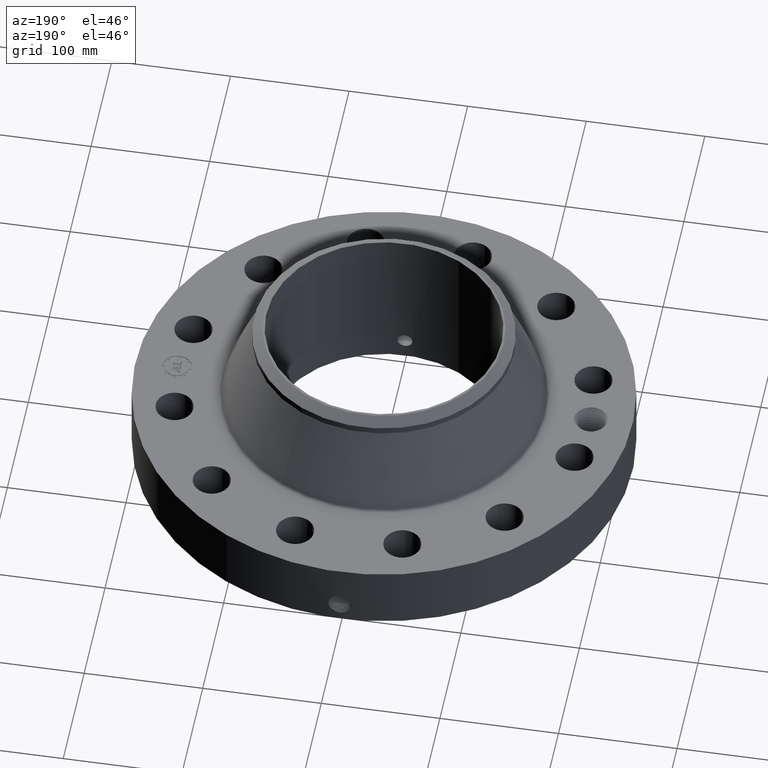
[diagram: clean part render]
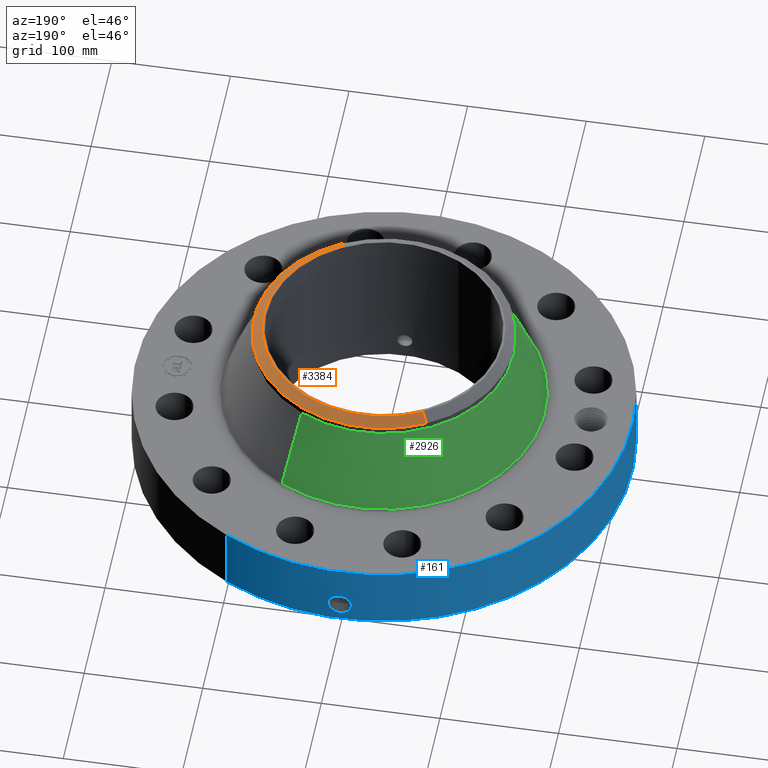
[diagram: same view with three faces highlighted in distinct colors, each labeled with its STEP entity id]
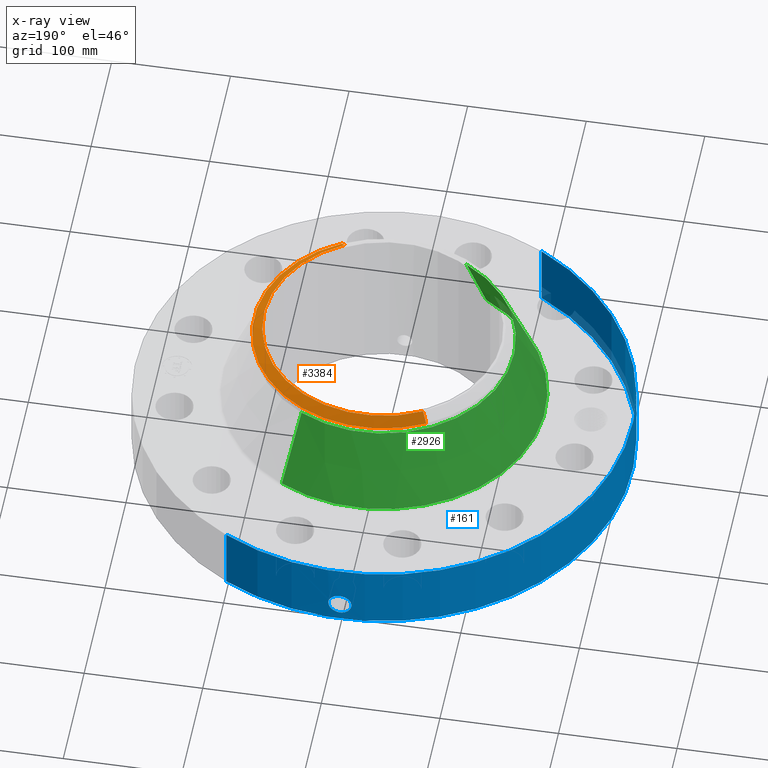
[diagram: x-ray of the same camera — body ghosted, the three highlighted faces saturated]
A machine part, auxiliary view with three faces highlighted in distinct colors.
The next image is the same camera in x-ray (body ghosted, the three faces saturated) — at least one of them is partly hidden behind the body in this view.
Their STEP definitions:

[orange] entity #3384 — the highlighted conical surface has half-angle 52.5 deg.
#2520=AXIS2_PLACEMENT_3D('Circle Axis2P3D',#2518,#2519,$) ;
#3329=AXIS2_PLACEMENT_3D('Cone Axis2P3D',#3326,#3327,#3328) ;
#3367=AXIS2_PLACEMENT_3D('Circle Axis2P3D',#3365,#3366,$) ;
#3374=AXIS2_PLACEMENT_3D('Circle Axis2P3D',#3372,#3373,$) ;
#2518=CARTESIAN_POINT('Axis2P3D Location',(0.,0.,5.50000000002)) ;
#2522=CARTESIAN_POINT('Vertex',(1.91062590897,-3.49737726716,5.50000000002)) ;
#2524=CARTESIAN_POINT('Vertex',(-1.91062590897,3.49737726716,5.50000000002)) ;
#3326=CARTESIAN_POINT('Axis2P3D Location',(0.,0.,5.50000000002)) ;
#3331=CARTESIAN_POINT('Line Origine',(1.98967355403,-3.64207301087,5.37348318666)) ;
#3335=CARTESIAN_POINT('Vertex',(2.06872119909,-3.78676875457,5.2469663733)) ;
#3338=CARTESIAN_POINT('Line Origine',(-1.98967355403,3.64207301087,5.37348318666)) ;
#3342=CARTESIAN_POINT('Vertex',(-2.06872119909,3.78676875457,5.2469663733)) ;
#3365=CARTESIAN_POINT('Axis2P3D Location',(0.,0.,5.2469663733)) ;
#3369=CARTESIAN_POINT('Vertex',(2.06872119909,3.78676875457,5.2469663733)) ;
#3372=CARTESIAN_POINT('Axis2P3D Location',(0.,0.,5.2469663733)) ;
#2519=DIRECTION('Axis2P3D Direction',(0.,0.,-0.0393700787402)) ;
#3327=DIRECTION('Axis2P3D Direction',(-0.,-0.,-0.0393700787402)) ;
#3328=DIRECTION('Axis2P3D XDirection',(-0.0188750212049,0.0345504945626,0.)) ;
#3332=DIRECTION('Vector Direction',(0.014974561121,-0.02741075027,-0.023966985394)) ;
#3339=DIRECTION('Vector Direction',(-0.014974561121,0.02741075027,-0.023966985394)) ;
#3366=DIRECTION('Axis2P3D Direction',(0.,0.,-0.0393700787402)) ;
#3373=DIRECTION('Axis2P3D Direction',(0.,0.,-0.0393700787402)) ;
#3333=VECTOR('Line Direction',#3332,0.0393700787402) ;
#3340=VECTOR('Line Direction',#3339,0.0393700787402) ;
#3378=ORIENTED_EDGE('',*,*,#3344,.F.) ;
#3379=ORIENTED_EDGE('',*,*,#2526,.F.) ;
#3380=ORIENTED_EDGE('',*,*,#3337,.T.) ;
#3381=ORIENTED_EDGE('',*,*,#3371,.T.) ;
#3382=ORIENTED_EDGE('',*,*,#3376,.F.) ;
#3384=ADVANCED_FACE('PartBody',(#3383),#3330,.T.) ;
#2521=CIRCLE('generated circle',#2520,3.9852401575) ;
#3368=CIRCLE('generated circle',#3367,4.31500000002) ;
#3375=CIRCLE('generated circle',#3374,4.31500000002) ;
#3330=CONICAL_SURFACE('Cone',#3329,3.9852401575,0.916297857297) ;
#2526=EDGE_CURVE('',#2523,#2525,#2521,.F.) ;
#3337=EDGE_CURVE('',#2523,#3336,#3334,.T.) ;
#3344=EDGE_CURVE('',#2525,#3343,#3341,.T.) ;
#3371=EDGE_CURVE('',#3336,#3370,#3368,.F.) ;
#3376=EDGE_CURVE('',#3343,#3370,#3375,.T.) ;
#3377=EDGE_LOOP('',(#3378,#3379,#3380,#3381,#3382)) ;
#3383=FACE_OUTER_BOUND('',#3377,.T.) ;
#3334=LINE('Line',#3331,#3333) ;
#3341=LINE('Line',#3338,#3340) ;
#2523=VERTEX_POINT('',#2522) ;
#2525=VERTEX_POINT('',#2524) ;
#3336=VERTEX_POINT('',#3335) ;
#3343=VERTEX_POINT('',#3342) ;
#3370=VERTEX_POINT('',#3369) ;

[blue] entity #161 — the highlighted cylindrical surface (partial cylindrical patch) has radius 209.55 mm, axis along (0, 0, -1).
#38=AXIS2_PLACEMENT_3D('Cylinder Axis2P3D',#35,#36,#37) ;
#42=AXIS2_PLACEMENT_3D('Circle Axis2P3D',#40,#41,$) ;
#58=AXIS2_PLACEMENT_3D('Circle Axis2P3D',#56,#57,$) ;
#35=CARTESIAN_POINT('Axis2P3D Location',(0.,0.,2.87500000001)) ;
#40=CARTESIAN_POINT('Axis2P3D Location',(0.,0.,0.250000000001)) ;
#44=CARTESIAN_POINT('Vertex',(-3.9552606935,-7.24005613562,0.250000000001)) ;
#46=CARTESIAN_POINT('Vertex',(3.9552606935,7.24005613562,0.250000000001)) ;
#49=CARTESIAN_POINT('Line Origine',(-3.9552606935,-7.24005613562,1.34500000001)) ;
#53=CARTESIAN_POINT('Vertex',(-3.9552606935,-7.24005613562,2.44000000001)) ;
#56=CARTESIAN_POINT('Axis2P3D Location',(0.,0.,2.44000000001)) ;
#60=CARTESIAN_POINT('Vertex',(3.9552606935,7.24005613562,2.44000000001)) ;
#63=CARTESIAN_POINT('Line Origine',(3.9552606935,7.24005613562,1.34500000001)) ;
#75=CARTESIAN_POINT('Control Point',(-0.0585696128887,8.24979209441,1.28923521611)) ;
#76=CARTESIAN_POINT('Control Point',(-0.0394626526908,8.24992774477,1.29244398859)) ;
#77=CARTESIAN_POINT('Control Point',(-0.0200911592014,8.24999828679,1.29407922484)) ;
#78=CARTESIAN_POINT('Control Point',(-0.000716274477469,8.24999996894,1.29411849877)) ;
#79=CARTESIAN_POINT('Vertex',(-0.0585551594517,8.24979245592,1.28923793039)) ;
#81=CARTESIAN_POINT('Vertex',(-0.000716142933371,8.24999996895,1.29411850921)) ;
#85=CARTESIAN_POINT('Control Point',(-0.0585550548739,8.24979219775,1.28923735404)) ;
#86=CARTESIAN_POINT('Control Point',(-0.097777861045,8.24951380364,1.28434299913)) ;
#87=CARTESIAN_POINT('Control Point',(-0.136232915895,8.24895065119,1.27230088991)) ;
#88=CARTESIAN_POINT('Control Point',(-0.171527588296,8.24821667314,1.25401074387)) ;
#89=CARTESIAN_POINT('Vertex',(-0.171527588296,8.24821667314,1.25401074387)) ;
#93=CARTESIAN_POINT('Control Point',(-0.0301661831778,8.24994484842,0.531126499402)) ;
#94=CARTESIAN_POINT('Control Point',(-0.0863158725847,8.24973953531,0.538271730941)) ;
#95=CARTESIAN_POINT('Control Point',(-0.140867393011,8.24906236128,0.555888081698)) ;
#96=CARTESIAN_POINT('Control Point',(-0.191063330736,8.24797606519,0.583459203779)) ;
#97=CARTESIAN_POINT('Control Point',(-0.264021348286,8.24590958046,0.64287450905)) ;
#98=CARTESIAN_POINT('Control Point',(-0.31583381647,8.2439862277,0.719126076859)) ;
#99=CARTESIAN_POINT('Control Point',(-0.332862825096,8.24329962511,0.751799202826)) ;
#100=CARTESIAN_POINT('Control Point',(-0.36822283732,8.24181030792,0.843994368665)) ;
#101=CARTESIAN_POINT('Control Point',(-0.374342967402,8.24148913876,0.94264315349)) ;
#102=CARTESIAN_POINT('Control Point',(-0.366209339837,8.24188145625,1.00431541996)) ;
#103=CARTESIAN_POINT('Control Point',(-0.333004984504,8.243387758,1.10218934393)) ;
#104=CARTESIAN_POINT('Control Point',(-0.270471268296,8.2456283249,1.1826225691)) ;
#105=CARTESIAN_POINT('Control Point',(-0.240874299621,8.24657783052,1.21132241956)) ;
#106=CARTESIAN_POINT('Control Point',(-0.20754928629,8.24746757606,1.23534384304)) ;
#107=CARTESIAN_POINT('Control Point',(-0.171527588296,8.24821667314,1.25401074387)) ;
#108=CARTESIAN_POINT('Vertex',(-0.0301661831778,8.24994484842,0.531126499402)) ;
#112=CARTESIAN_POINT('Control Point',(-0.0301661831778,8.24994484842,0.531126499402)) ;
#113=CARTESIAN_POINT('Control Point',(-0.0201048323032,8.24998163806,0.530865651291)) ;
#114=CARTESIAN_POINT('Control Point',(-0.010038769677,8.25000000335,0.530948524294)) ;
#115=CARTESIAN_POINT('Control Point',(2.7287835436E-006,8.25000000003,0.531374667805)) ;
#116=CARTESIAN_POINT('Vertex',(2.72878353785E-006,8.25000000003,0.531374667805)) ;
#120=CARTESIAN_POINT('Control Point',(0.193376636571,8.2477333539,0.586036260197)) ;
#121=CARTESIAN_POINT('Control Point',(0.149296475206,8.24876685886,0.561236554268)) ;
#122=CARTESIAN_POINT('Control Point',(0.101176964588,8.24958173649,0.543501446442)) ;
#123=CARTESIAN_POINT('Control Point',(0.0508280469548,8.24999998322,0.533531605389)) ;
#124=CARTESIAN_POINT('Control Point',(2.72878355826E-006,8.25000000003,0.531374667805)) ;
#125=CARTESIAN_POINT('Vertex',(0.193376636571,8.2477333539,0.586036260197)) ;
#129=CARTESIAN_POINT('Control Point',(0.193376636571,8.2477333539,0.586036260197)) ;
#130=CARTESIAN_POINT('Control Point',(0.222475245699,8.24705110692,0.602407273563)) ;
#131=CARTESIAN_POINT('Control Point',(0.249928246394,8.24627904485,0.621663590948)) ;
#132=CARTESIAN_POINT('Control Point',(0.275330507809,8.24545549083,0.643640136217)) ;
#133=CARTESIAN_POINT('Control Point',(0.342403540039,8.24304477495,0.71512277359)) ;
#134=CARTESIAN_POINT('Control Point',(0.385376472358,8.24103926985,0.80469580448)) ;
#135=CARTESIAN_POINT('Control Point',(0.400616608872,8.24025160308,0.869012310412)) ;
#136=CARTESIAN_POINT('Control Point',(0.401714064035,8.2402431258,0.98326120027)) ;
#137=CARTESIAN_POINT('Control Point',(0.361790909711,8.24209270966,1.08796883094)) ;
#138=CARTESIAN_POINT('Control Point',(0.337601239461,8.24316154871,1.12942392742)) ;
#139=CARTESIAN_POINT('Control Point',(0.268614235695,8.24586286825,1.21362504746)) ;
#140=CARTESIAN_POINT('Control Point',(0.175473094958,8.24840438088,1.26855126017)) ;
#141=CARTESIAN_POINT('Control Point',(0.118010541651,8.24948032514,1.28854420531)) ;
#142=CARTESIAN_POINT('Control Point',(0.0585599402406,8.25000018362,1.29702524082)) ;
#143=CARTESIAN_POINT('Control Point',(-2.58579355231E-005,8.24999999999,1.29415298433)) ;
#144=CARTESIAN_POINT('Vertex',(-2.58579355339E-005,8.24999999999,1.29415298433)) ;
#148=CARTESIAN_POINT('Control Point',(-0.000716142923083,8.24999996895,1.29411850919)) ;
#149=CARTESIAN_POINT('Control Point',(-0.000371024410716,8.24999999891,1.29413606204)) ;
#150=CARTESIAN_POINT('Control Point',(-2.58579414909E-005,8.24999999999,1.29415298433)) ;
#36=DIRECTION('Axis2P3D Direction',(0.,0.,-0.0393700787402)) ;
#37=DIRECTION('Axis2P3D XDirection',(0.0188750212049,0.0345504945626,0.)) ;
#41=DIRECTION('Axis2P3D Direction',(0.,0.,-0.0393700787402)) ;
#50=DIRECTION('Vector Direction',(0.,0.,-0.0393700787402)) ;
#57=DIRECTION('Axis2P3D Direction',(0.,0.,-0.0393700787402)) ;
#64=DIRECTION('Vector Direction',(0.,0.,-0.0393700787402)) ;
#51=VECTOR('Line Direction',#50,0.0393700787402) ;
#65=VECTOR('Line Direction',#64,0.0393700787402) ;
#69=ORIENTED_EDGE('',*,*,#48,.F.) ;
#70=ORIENTED_EDGE('',*,*,#55,.T.) ;
#71=ORIENTED_EDGE('',*,*,#62,.T.) ;
#72=ORIENTED_EDGE('',*,*,#67,.F.) ;
#153=ORIENTED_EDGE('',*,*,#83,.F.) ;
#154=ORIENTED_EDGE('',*,*,#91,.T.) ;
#155=ORIENTED_EDGE('',*,*,#110,.F.) ;
#156=ORIENTED_EDGE('',*,*,#118,.T.) ;
#157=ORIENTED_EDGE('',*,*,#127,.F.) ;
#158=ORIENTED_EDGE('',*,*,#146,.T.) ;
#159=ORIENTED_EDGE('',*,*,#151,.F.) ;
#160=FACE_BOUND('',#152,.T.) ;
#161=ADVANCED_FACE('PartBody',(#73,#160),#39,.T.) ;
#74=B_SPLINE_CURVE_WITH_KNOTS('',3,(#75,#76,#77,#78),.UNSPECIFIED.,.F.,.U.,(4,4),(4.37192351915,6.52139132832),.UNSPECIFIED.) ;
#84=B_SPLINE_CURVE_WITH_KNOTS('',3,(#85,#86,#87,#88),.UNSPECIFIED.,.F.,.U.,(4,4),(0.,4.44126858864),.UNSPECIFIED.) ;
#92=B_SPLINE_CURVE_WITH_KNOTS('',5,(#93,#94,#95,#96,#97,#98,#99,#100,#101,#102,#103,#104,#105,#106,#107),.UNSPECIFIED.,.F.,.U.,(6,3,3,3,6),(0.,9.83723212412,16.4175924902,27.5981636564,35.152752242),.UNSPECIFIED.) ;
#111=B_SPLINE_CURVE_WITH_KNOTS('',3,(#112,#113,#114,#115),.UNSPECIFIED.,.F.,.U.,(4,4),(0.,1.049454021),.UNSPECIFIED.) ;
#119=B_SPLINE_CURVE_WITH_KNOTS('',4,(#120,#121,#122,#123,#124),.UNSPECIFIED.,.F.,.U.,(5,5),(0.,7.08245351645),.UNSPECIFIED.) ;
#128=B_SPLINE_CURVE_WITH_KNOTS('',5,(#129,#130,#131,#132,#133,#134,#135,#136,#137,#138,#139,#140,#141,#142,#143),.UNSPECIFIED.,.F.,.U.,(6,3,3,3,6),(0.,5.84416939232,17.0877563965,25.53593101,36.4868313987),.UNSPECIFIED.) ;
#147=B_SPLINE_CURVE_WITH_KNOTS('',2,(#148,#149,#150),.UNSPECIFIED.,.F.,.U.,(3,3),(1.0499922076,1.07579971677),.UNSPECIFIED.) ;
#43=CIRCLE('generated circle',#42,8.25000000003) ;
#59=CIRCLE('generated circle',#58,8.25000000003) ;
#39=CYLINDRICAL_SURFACE('generated cylinder',#38,8.25000000003) ;
#48=EDGE_CURVE('',#45,#47,#43,.T.) ;
#55=EDGE_CURVE('',#45,#54,#52,.F.) ;
#62=EDGE_CURVE('',#54,#61,#59,.T.) ;
#67=EDGE_CURVE('',#47,#61,#66,.F.) ;
#83=EDGE_CURVE('',#80,#82,#74,.T.) ;
#91=EDGE_CURVE('',#80,#90,#84,.T.) ;
#110=EDGE_CURVE('',#109,#90,#92,.T.) ;
#118=EDGE_CURVE('',#109,#117,#111,.T.) ;
#127=EDGE_CURVE('',#126,#117,#119,.T.) ;
#146=EDGE_CURVE('',#126,#145,#128,.T.) ;
#151=EDGE_CURVE('',#82,#145,#147,.T.) ;
#68=EDGE_LOOP('',(#69,#70,#71,#72)) ;
#152=EDGE_LOOP('',(#153,#154,#155,#156,#157,#158,#159)) ;
#73=FACE_OUTER_BOUND('',#68,.T.) ;
#52=LINE('Line',#49,#51) ;
#66=LINE('Line',#63,#65) ;
#45=VERTEX_POINT('',#44) ;
#47=VERTEX_POINT('',#46) ;
#54=VERTEX_POINT('',#53) ;
#61=VERTEX_POINT('',#60) ;
#80=VERTEX_POINT('',#79) ;
#82=VERTEX_POINT('',#81) ;
#90=VERTEX_POINT('',#89) ;
#109=VERTEX_POINT('',#108) ;
#117=VERTEX_POINT('',#116) ;
#126=VERTEX_POINT('',#125) ;
#145=VERTEX_POINT('',#144) ;

[green] entity #2926 — the highlighted conical surface has half-angle 22.408 deg.
#2172=AXIS2_PLACEMENT_3D('Circle Axis2P3D',#2170,#2171,$) ;
#2887=AXIS2_PLACEMENT_3D('Cone Axis2P3D',#2884,#2885,#2886) ;
#2917=AXIS2_PLACEMENT_3D('Circle Axis2P3D',#2915,#2916,$) ;
#2148=CARTESIAN_POINT('Vertex',(2.56223312122,4.69013626856,2.51425624679)) ;
#2155=CARTESIAN_POINT('Vertex',(-2.56223312122,-4.69013626856,2.51425624679)) ;
#2170=CARTESIAN_POINT('Axis2P3D Location',(0.,0.,2.51425624679)) ;
#2884=CARTESIAN_POINT('Axis2P3D Location',(0.,0.,5.01074590086)) ;
#2889=CARTESIAN_POINT('Line Origine',(2.31547716015,4.23845251156,3.76250107383)) ;
#2893=CARTESIAN_POINT('Vertex',(2.06872119909,3.78676875457,5.01074590086)) ;
#2900=CARTESIAN_POINT('Vertex',(-2.06872119909,-3.78676875457,5.01074590086)) ;
#2903=CARTESIAN_POINT('Line Origine',(-2.31547716015,-4.23845251156,3.76250107383)) ;
#2915=CARTESIAN_POINT('Axis2P3D Location',(0.,0.,5.01074590086)) ;
#2171=DIRECTION('Axis2P3D Direction',(0.,0.,-0.0393700787402)) ;
#2885=DIRECTION('Axis2P3D Direction',(0.,0.,-0.0393700787402)) ;
#2886=DIRECTION('Axis2P3D XDirection',(-0.0188750212049,-0.0345504945626,0.)) ;
#2890=DIRECTION('Vector Direction',(0.00719511926622,0.0131705774731,-0.0363973796828)) ;
#2904=DIRECTION('Vector Direction',(-0.00719511926622,-0.0131705774731,-0.0363973796828)) ;
#2916=DIRECTION('Axis2P3D Direction',(0.,0.,-0.0393700787402)) ;
#2891=VECTOR('Line Direction',#2890,0.0393700787402) ;
#2905=VECTOR('Line Direction',#2904,0.0393700787402) ;
#2921=ORIENTED_EDGE('',*,*,#2174,.F.) ;
#2922=ORIENTED_EDGE('',*,*,#2907,.T.) ;
#2923=ORIENTED_EDGE('',*,*,#2919,.T.) ;
#2924=ORIENTED_EDGE('',*,*,#2895,.F.) ;
#2926=ADVANCED_FACE('PartBody',(#2925),#2888,.T.) ;
#2173=CIRCLE('generated circle',#2172,5.34438179635) ;
#2918=CIRCLE('generated circle',#2917,4.31500000002) ;
#2888=CONICAL_SURFACE('Cone',#2887,4.31500000002,0.391091734485) ;
#2174=EDGE_CURVE('',#2156,#2149,#2173,.T.) ;
#2895=EDGE_CURVE('',#2149,#2894,#2892,.F.) ;
#2907=EDGE_CURVE('',#2156,#2901,#2906,.F.) ;
#2919=EDGE_CURVE('',#2901,#2894,#2918,.T.) ;
#2920=EDGE_LOOP('',(#2921,#2922,#2923,#2924)) ;
#2925=FACE_OUTER_BOUND('',#2920,.T.) ;
#2892=LINE('Line',#2889,#2891) ;
#2906=LINE('Line',#2903,#2905) ;
#2149=VERTEX_POINT('',#2148) ;
#2156=VERTEX_POINT('',#2155) ;
#2894=VERTEX_POINT('',#2893) ;
#2901=VERTEX_POINT('',#2900) ;